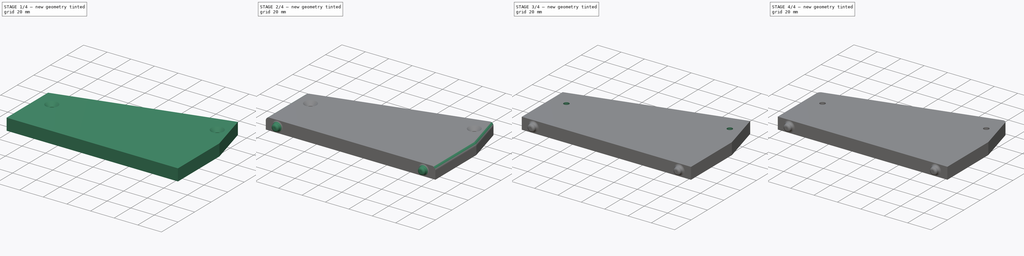
[diagram: build sequence overview — one tinted view per stage of 4, left to right]
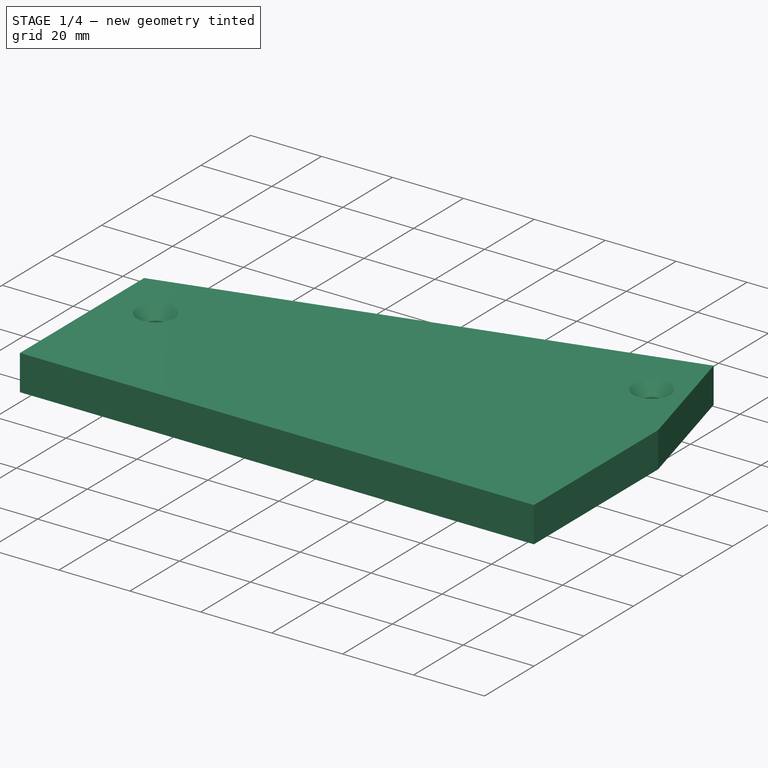
[diagram: stage 1 of 4 — iso view after this stage's code; geometry added in this stage tinted green]
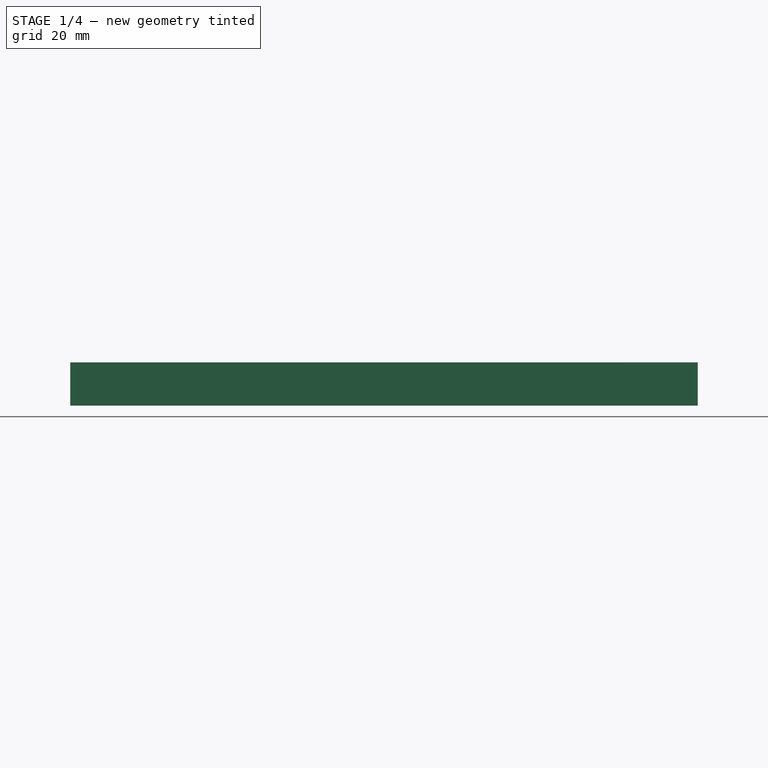
[diagram: stage 1 of 4 — front view after this stage's code; geometry added in this stage tinted green]
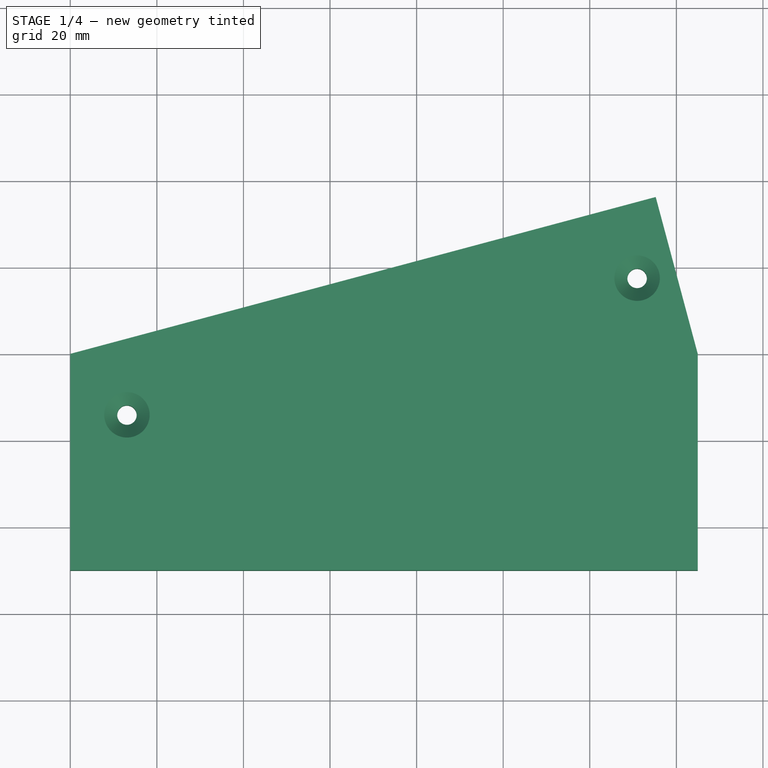
[diagram: stage 1 of 4 — top view after this stage's code; geometry added in this stage tinted green]
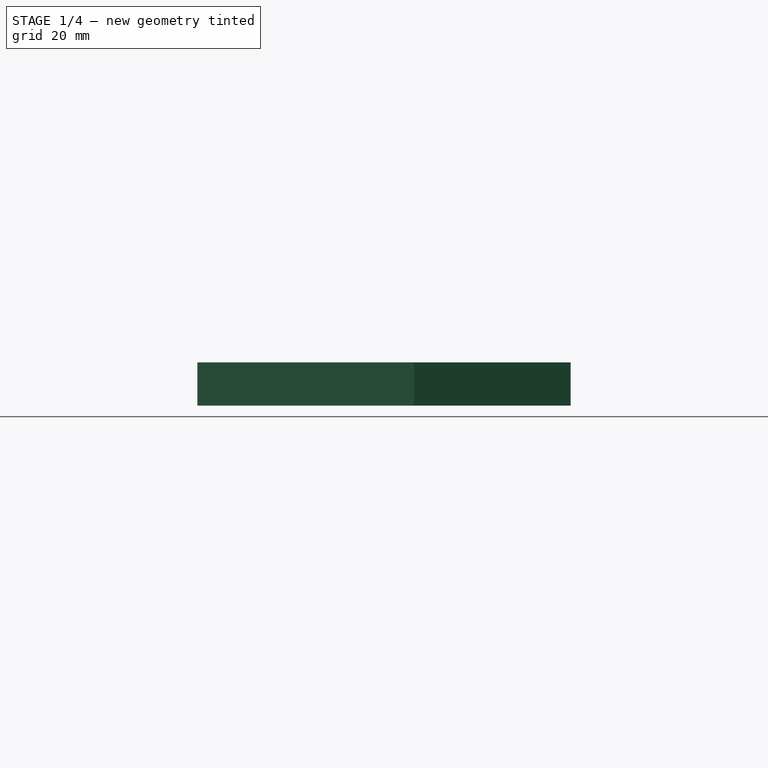
[diagram: stage 1 of 4 — right view after this stage's code; geometry added in this stage tinted green]
FCSTD DOCUMENT  (FreeCAD 1.0R39109 (Git))
Label: Sides
License: All rights reserved
LicenseURL: http://en.wikipedia.org/wiki/All_rights_reserved
objects: Sketcher::SketchObject×6, PartDesign::Pad×4, PartDesign::Fillet×4, PartDesign::Pocket×2, PartDesign::Chamfer×2, PartDesign::Body×2
note: 50 computed .brp shape members not serialized (recipe doc carries the construction recipe); baked Part::Feature solids carry a one-line shape summary decoded from their .brp

FEATURE [Sketcher::SketchObject] Sketch
  ArcFitTolerance = 1e-06
  AttachmentSupport = -> [XY_Plane]
  FullyConstrained = true
  MakeInternals = false
  MapMode = 5
  sketch-geometry (5):
    g0: LineSegment StartX=0 StartY=0 StartZ=0 EndX=135.23 EndY=36.2346 EndZ=0
    g1: LineSegment StartX=135.23 StartY=36.2346 StartZ=0 EndX=144.939 EndY=0 EndZ=0
    g2: LineSegment StartX=0 StartY=0 StartZ=0 EndX=0 EndY=-50 EndZ=0
    g3: LineSegment StartX=144.939 StartY=0 StartZ=0 EndX=144.939 EndY=-50 EndZ=0
    g4: LineSegment StartX=0 StartY=-50 StartZ=0 EndX=144.939 EndY=-50 EndZ=0
  constraints (14):
    c: Distance(g0) = 140
    c: Angle(g-1,g0) = 0.261799
    c: Coincident(g0,g-1)
    c: Angle(g-1,g1) = -1.309
    c: Coincident(g1,g0)
    c: PointOnObject(g1,g-1)
    c: Distance(g2) = 50
    c: Coincident(g2,g0)
    c: PointOnObject(g2,g-2)
    c: Distance(g3) = 50
    c: Coincident(g3,g1)
    c: Vertical(g3)
    c: Coincident(g4,g2)
    c: Coincident(g4,g3)
FEATURE [PartDesign::Pad] Pad
  Direction = (0,0,1)
  Length = 10
  Length2 = 10
  Profile = -> Sketch
  ReferenceAxis = -> Sketch [N_Axis]
  Suppressed = false
  Type = 0
FEATURE [Sketcher::SketchObject] Sketch001
  ArcFitTolerance = 1e-06
  AttachmentSupport = -> [Pad]
  FullyConstrained = true
  MakeInternals = false
  MapMode = 5
  Placement = pos=(0,0,10) rot=(0,0,1;0rad)
  sketch-geometry (6):
    g0: LineSegment [constr] StartX=0 StartY=0 StartZ=0 EndX=8.69333 EndY=2.32937 EndZ=0
    g1: LineSegment [constr] StartX=8.69333 StartY=2.32937 StartZ=0 EndX=13.0933 EndY=-14.0914 EndZ=0
    g2: Circle CenterX=13.0933 CenterY=-14.0914 CenterZ=0 NormalX=0 NormalY=0 NormalZ=1 AngleXU=0 Radius=2.25
    g3: LineSegment [constr] StartX=8.69333 StartY=2.32937 StartZ=0 EndX=126.536 EndY=33.9052 EndZ=0
    g4: LineSegment [constr] StartX=126.536 StartY=33.9052 StartZ=0 EndX=130.936 EndY=17.4845 EndZ=0
    g5: Circle CenterX=130.936 CenterY=17.4845 CenterZ=0 NormalX=0 NormalY=0 NormalZ=1 AngleXU=0 Radius=2.25
  constraints (16):
    c: Distance(g0) = 9
    c: Angle(g-1,g0) = 0.261799
    c: Coincident(g0,g-1)
    c: Distance(g1) = 17
    c: Angle(g-1,g1) = -1.309
    c: Coincident(g1,g0)
    c: Diameter(g2) = 4.5
    c: Coincident(g2,g1)
    c: Distance(g3) = 122
    c: Angle(g-1,g3) = 0.261799
    c: Coincident(g3,g0)
    c: Distance(g4) = 17
    c: Angle(g-1,g4) = -1.309
    c: Coincident(g4,g3)
    c: Diameter(g5) = 4.5
    c: Coincident(g5,g4)
FEATURE [PartDesign::Pocket] Pocket
  BaseFeature = -> Pad
  Direction = (0,0,-1)
  Length = 10
  Length2 = 5
  Profile = -> Sketch001
  ReferenceAxis = -> Sketch001 [N_Axis]
  Suppressed = false
  Type = 0
FEATURE [PartDesign::Chamfer] Chamfer
  Angle = 45
  Base = -> Pocket [Edge18,Edge17]
  BaseFeature = -> Pocket
  ChamferType = 0
  FlipDirection = false
  Size = 3
  Size2 = 1
  SupportTransform = false
  Suppressed = false
  UseAllEdges = false
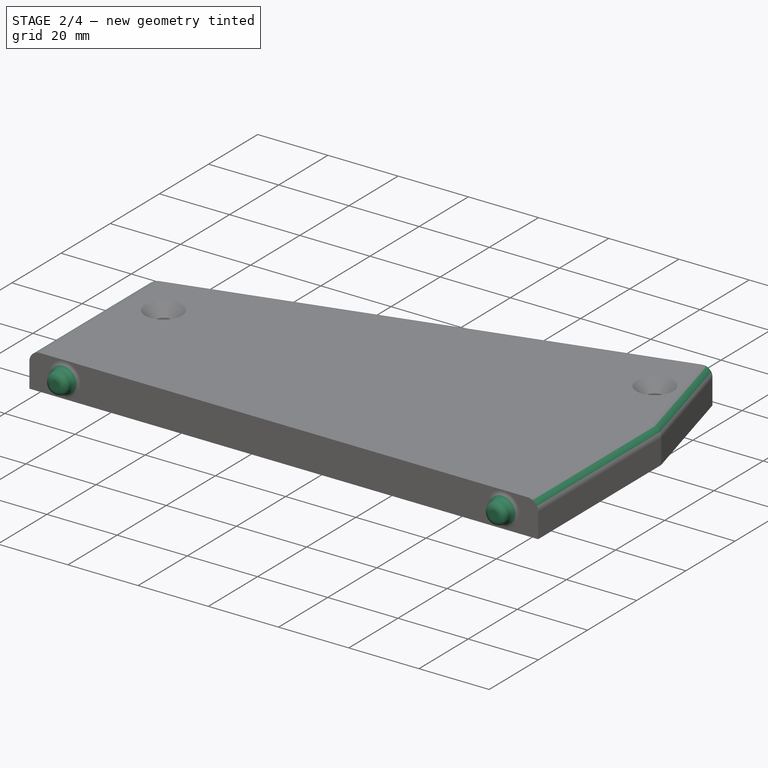
[diagram: stage 2 of 4 — iso view after this stage's code; geometry added in this stage tinted green]
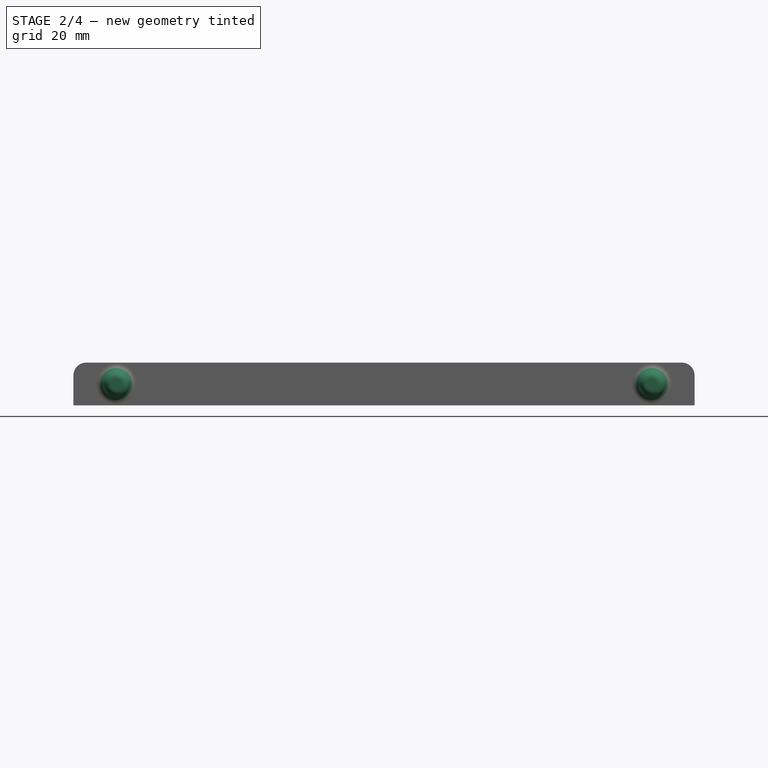
[diagram: stage 2 of 4 — front view after this stage's code; geometry added in this stage tinted green]
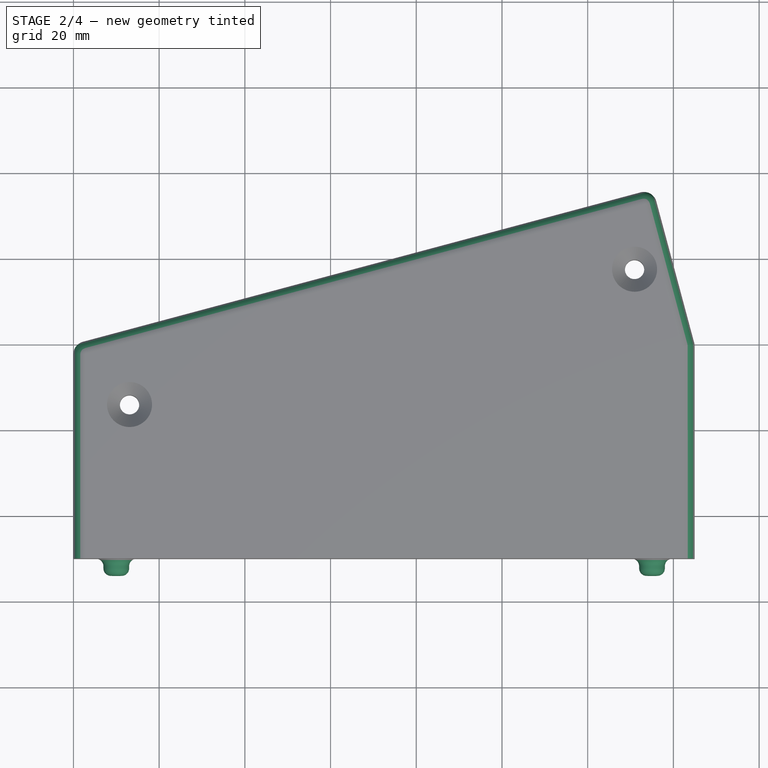
[diagram: stage 2 of 4 — top view after this stage's code; geometry added in this stage tinted green]
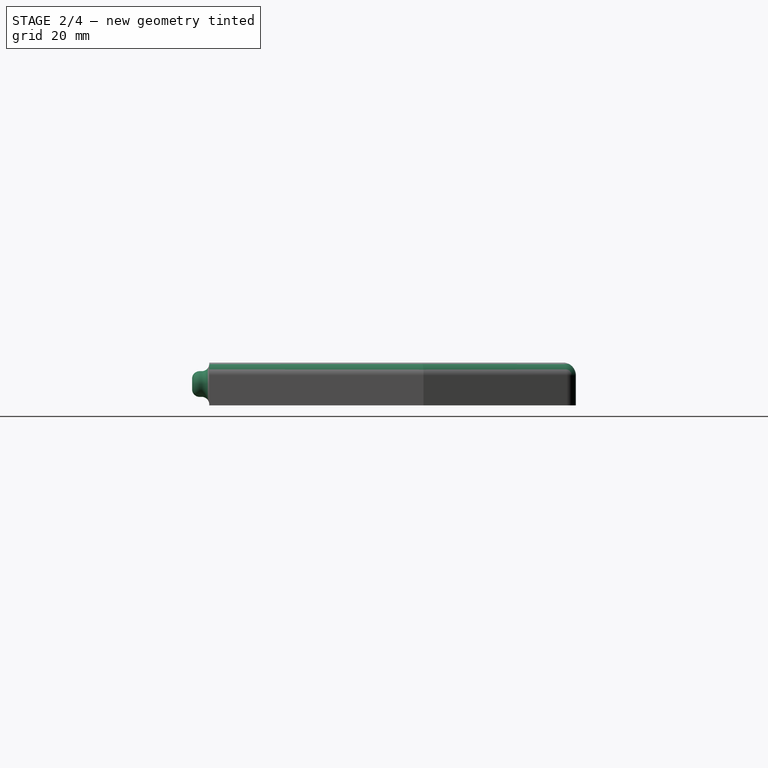
[diagram: stage 2 of 4 — right view after this stage's code; geometry added in this stage tinted green]
FEATURE [PartDesign::Fillet] Fillet
  Base = -> Chamfer [Edge6,Edge4,Edge2,Edge3,Edge11,Edge10]
  BaseFeature = -> Chamfer
  Radius = 3
  SupportTransform = false
  Suppressed = false
  UseAllEdges = false
FEATURE [PartDesign::Body] Body001  label="Right"
  AllowCompound = false
  Group = -> [Sketch002,Pad001,Sketch003,Pocket001,Chamfer001,Fillet001,Sketch004,Pad002,Fillet002]
  Origin = -> Origin001
  Placement = pos=(0,-102,0) rot=(0,0,1;0rad)
  Tip = -> Fillet002
FEATURE [Sketcher::SketchObject] Sketch005
  ArcFitTolerance = 1e-06
  AttachmentSupport = -> [Fillet]
  FullyConstrained = true
  MakeInternals = false
  MapMode = 5
  Placement = pos=(0,-50,0) rot=(1,0,0;1.5708rad)
  sketch-geometry (3):
    g0: LineSegment [constr] StartX=0 StartY=5 StartZ=0 EndX=145 EndY=5 EndZ=0
    g1: Circle CenterX=10 CenterY=5 CenterZ=0 NormalX=0 NormalY=0 NormalZ=1 AngleXU=0 Radius=3
    g2: Circle CenterX=135 CenterY=5 CenterZ=0 NormalX=0 NormalY=0 NormalZ=1 AngleXU=0 Radius=3
  constraints (10):
    c: Distance(g0) = 145
    c: Horizontal(g0)
    c: PointOnObject(g0,g-2)
    c: DistanceY(g-1,g0) = 5
    c: Diameter(g1) = 6
    c: PointOnObject(g1,g0)
    c: Diameter(g2) = 6
    c: PointOnObject(g2,g0)
    c: DistanceX(g0,g1) = 10
    c: DistanceX(g2,g0) = 10
FEATURE [PartDesign::Pad] Pad003
  BaseFeature = -> Fillet
  Direction = (0,-1,2e-16)
  Length = 4
  Length2 = 10
  Profile = -> Sketch005
  ReferenceAxis = -> Sketch005 [N_Axis]
  Suppressed = false
  Type = 0
FEATURE [PartDesign::Fillet] Fillet003
  Base = -> Pad003 [Edge41,Edge14,Edge39,Edge13]
  BaseFeature = -> Pad003
  Radius = 1.75
  SupportTransform = false
  Suppressed = false
  UseAllEdges = false
FEATURE [PartDesign::Body] Body  label="Left"
  AllowCompound = false
  Group = -> [Sketch,Pad,Sketch001,Pocket,Chamfer,Fillet,Sketch005,Pad003,Fillet003]
  Origin = -> Origin
  Tip = -> Fillet003
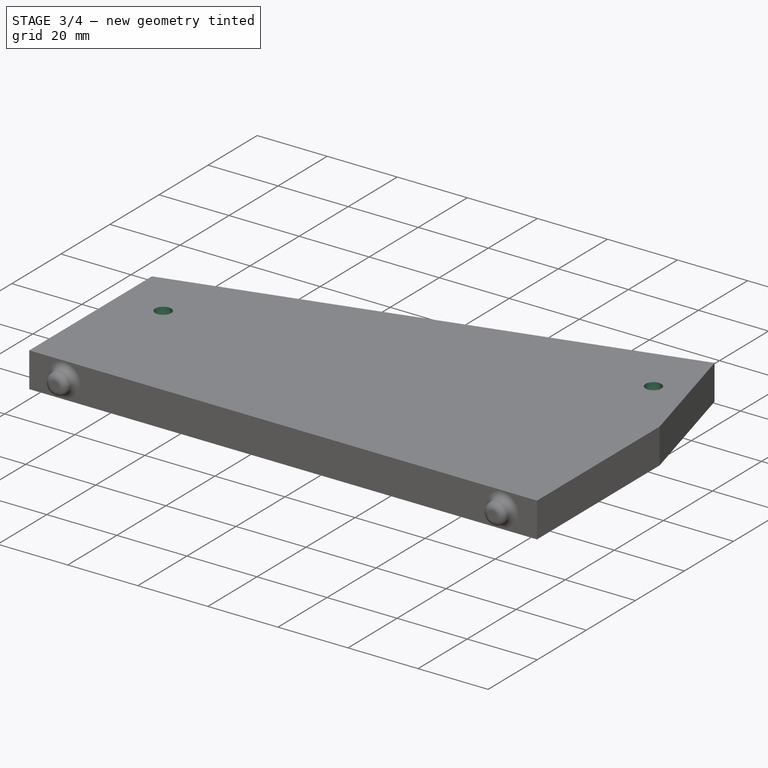
[diagram: stage 3 of 4 — iso view after this stage's code; geometry added in this stage tinted green]
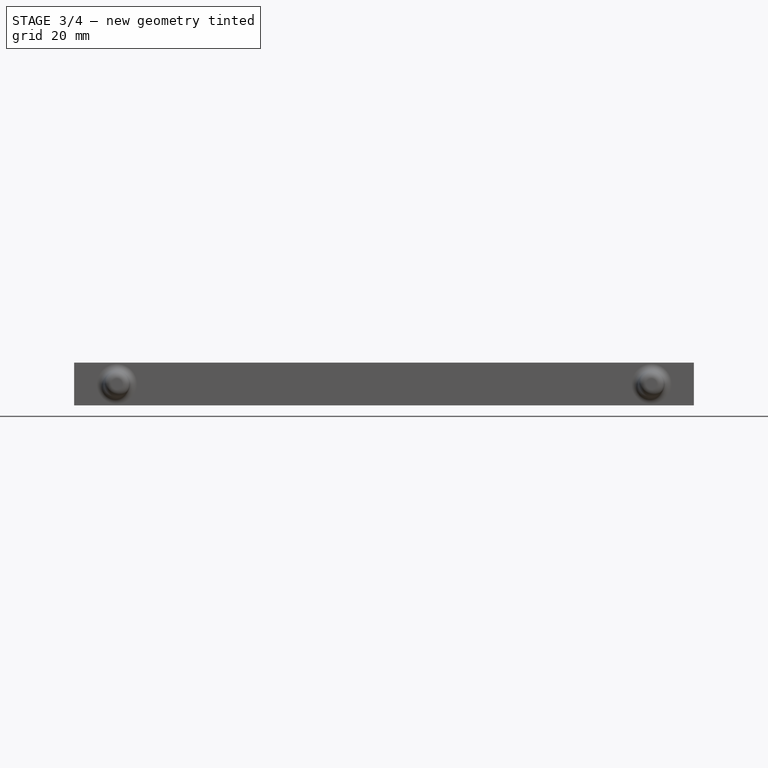
[diagram: stage 3 of 4 — front view after this stage's code; geometry added in this stage tinted green]
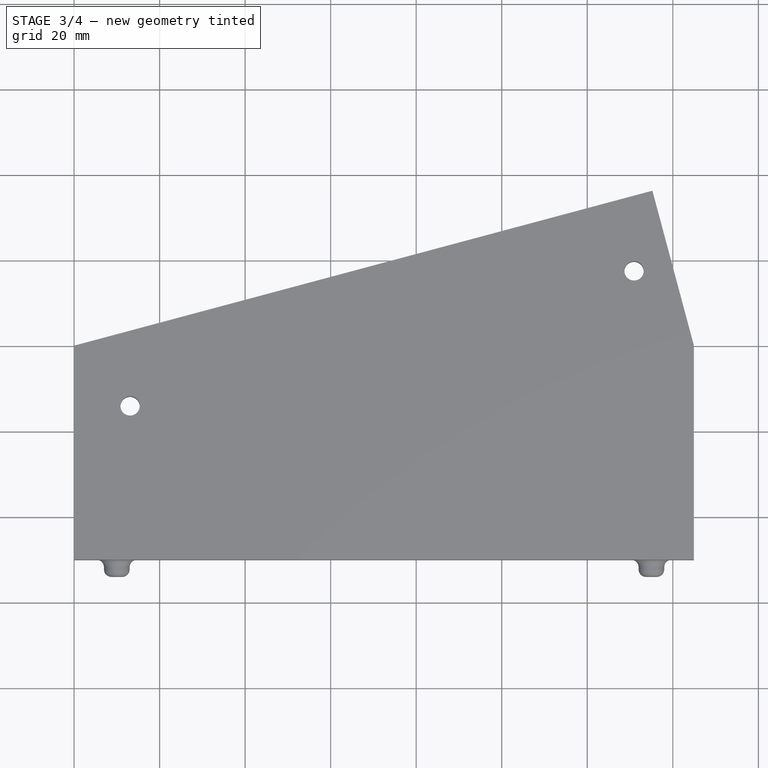
[diagram: stage 3 of 4 — top view after this stage's code; geometry added in this stage tinted green]
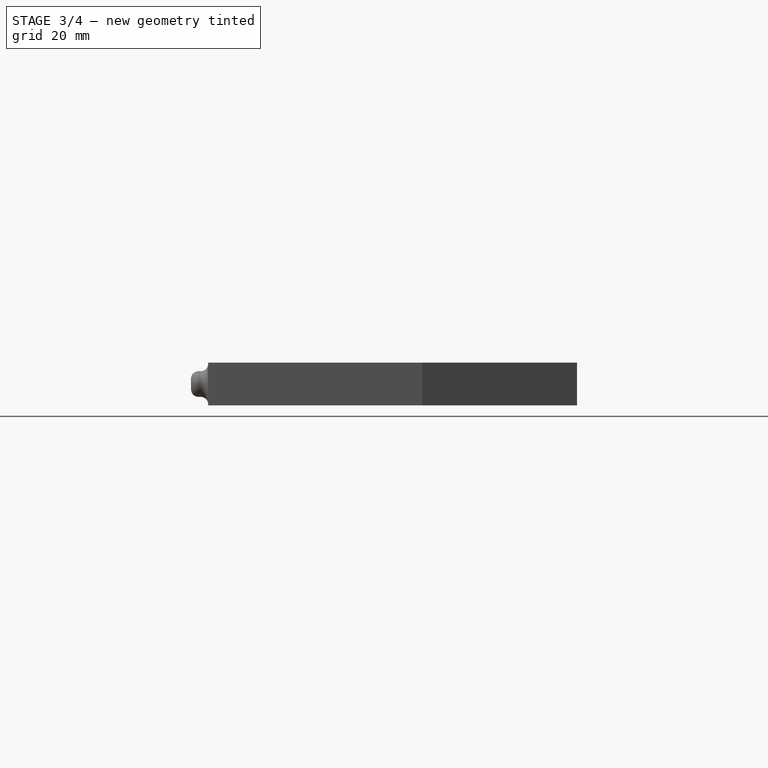
[diagram: stage 3 of 4 — right view after this stage's code; geometry added in this stage tinted green]
FEATURE [Sketcher::SketchObject] Sketch002
  ArcFitTolerance = 1e-06
  AttachmentSupport = -> [XY_Plane001]
  FullyConstrained = true
  MakeInternals = false
  MapMode = 5
  sketch-geometry (5):
    g0: LineSegment StartX=0 StartY=0 StartZ=0 EndX=135.23 EndY=36.2346 EndZ=0
    g1: LineSegment StartX=135.23 StartY=36.2346 StartZ=0 EndX=144.939 EndY=0 EndZ=0
    g2: LineSegment StartX=0 StartY=0 StartZ=0 EndX=0 EndY=-50 EndZ=0
    g3: LineSegment StartX=144.939 StartY=0 StartZ=0 EndX=144.939 EndY=-50 EndZ=0
    g4: LineSegment StartX=0 StartY=-50 StartZ=0 EndX=144.939 EndY=-50 EndZ=0
  constraints (14):
    c: Distance(g0) = 140
    c: Angle(g-1,g0) = 0.261799
    c: Coincident(g0,g-1)
    c: Angle(g-1,g1) = -1.309
    c: Coincident(g1,g0)
    c: PointOnObject(g1,g-1)
    c: Distance(g2) = 50
    c: Coincident(g2,g0)
    c: PointOnObject(g2,g-2)
    c: Distance(g3) = 50
    c: Coincident(g3,g1)
    c: Vertical(g3)
    c: Coincident(g4,g2)
    c: Coincident(g4,g3)
FEATURE [PartDesign::Pad] Pad001
  Direction = (0,0,1)
  Length = 10
  Length2 = 10
  Profile = -> Sketch002
  ReferenceAxis = -> Sketch002 [N_Axis]
  Suppressed = false
  Type = 0
FEATURE [Sketcher::SketchObject] Sketch003
  ArcFitTolerance = 1e-06
  AttachmentSupport = -> [Pad001]
  FullyConstrained = true
  MakeInternals = false
  MapMode = 5
  Placement = pos=(0,0,10) rot=(0,0,1;0rad)
  sketch-geometry (6):
    g0: LineSegment [constr] StartX=0 StartY=0 StartZ=0 EndX=8.69333 EndY=2.32937 EndZ=0
    g1: LineSegment [constr] StartX=8.69333 StartY=2.32937 StartZ=0 EndX=13.0933 EndY=-14.0914 EndZ=0
    g2: Circle CenterX=13.0933 CenterY=-14.0914 CenterZ=0 NormalX=0 NormalY=0 NormalZ=1 AngleXU=0 Radius=2.25
    g3: LineSegment [constr] StartX=8.69333 StartY=2.32937 StartZ=0 EndX=126.536 EndY=33.9052 EndZ=0
    g4: LineSegment [constr] StartX=126.536 StartY=33.9052 StartZ=0 EndX=130.936 EndY=17.4845 EndZ=0
    g5: Circle CenterX=130.936 CenterY=17.4845 CenterZ=0 NormalX=0 NormalY=0 NormalZ=1 AngleXU=0 Radius=2.25
  constraints (16):
    c: Distance(g0) = 9
    c: Angle(g-1,g0) = 0.261799
    c: Coincident(g0,g-1)
    c: Distance(g1) = 17
    c: Angle(g-1,g1) = -1.309
    c: Coincident(g1,g0)
    c: Diameter(g2) = 4.5
    c: Coincident(g2,g1)
    c: Distance(g3) = 122
    c: Angle(g-1,g3) = 0.261799
    c: Coincident(g3,g0)
    c: Distance(g4) = 17
    c: Angle(g-1,g4) = -1.309
    c: Coincident(g4,g3)
    c: Diameter(g5) = 4.5
    c: Coincident(g5,g4)
FEATURE [PartDesign::Pocket] Pocket001
  BaseFeature = -> Pad001
  Direction = (0,0,-1)
  Length = 10
  Length2 = 5
  Profile = -> Sketch003
  ReferenceAxis = -> Sketch003 [N_Axis]
  Suppressed = false
  Type = 0
FEATURE [PartDesign::Chamfer] Chamfer001
  Angle = 45
  Base = -> Pocket001 [Edge14,Edge13]
  BaseFeature = -> Pocket001
  ChamferType = 2
  FlipDirection = false
  Size = 3
  Size2 = 1
  SupportTransform = false
  Suppressed = false
  UseAllEdges = false
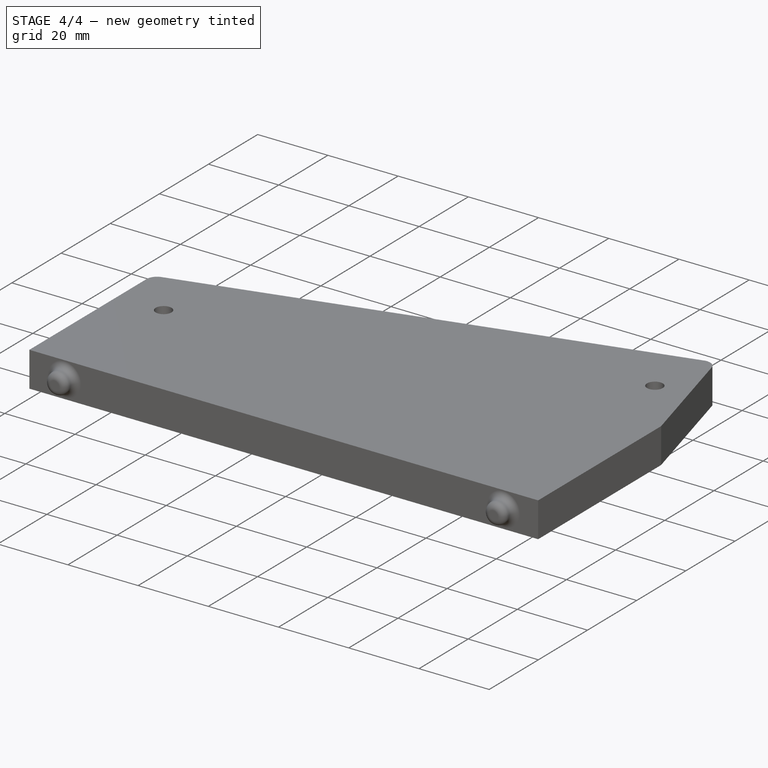
[diagram: stage 4 of 4 — iso view after this stage's code; geometry added in this stage tinted green]
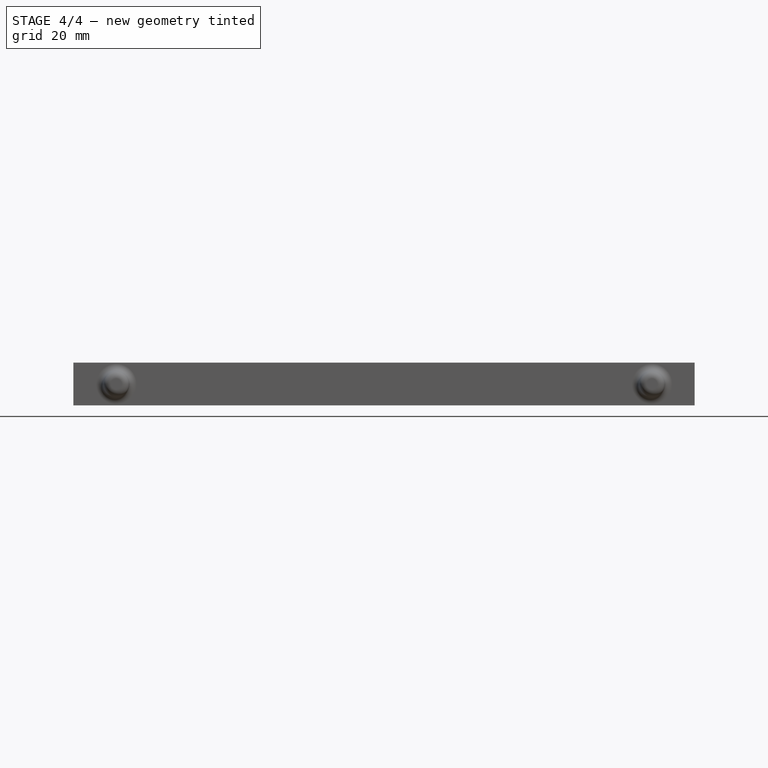
[diagram: stage 4 of 4 — front view after this stage's code; geometry added in this stage tinted green]
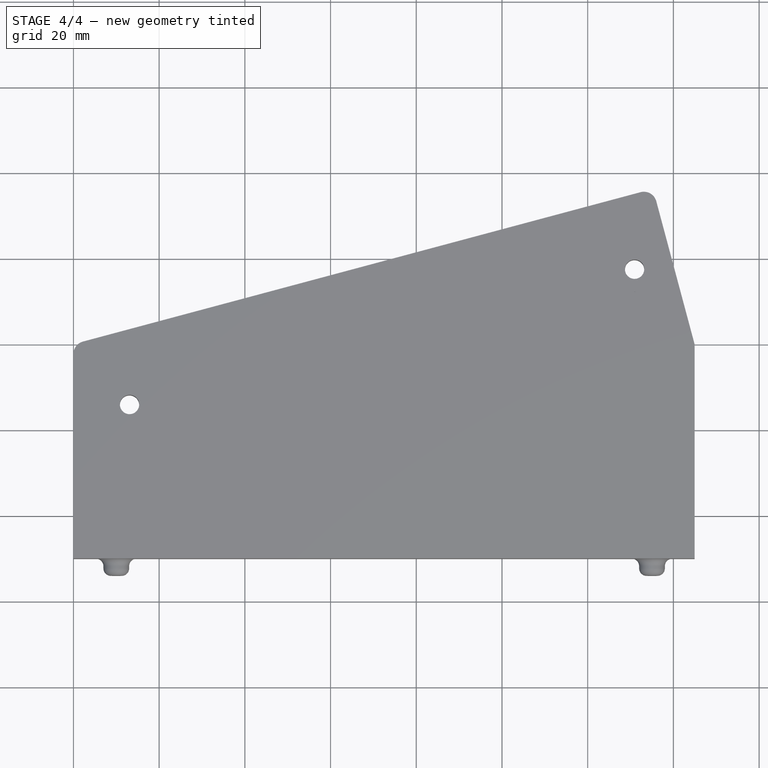
[diagram: stage 4 of 4 — top view after this stage's code; geometry added in this stage tinted green]
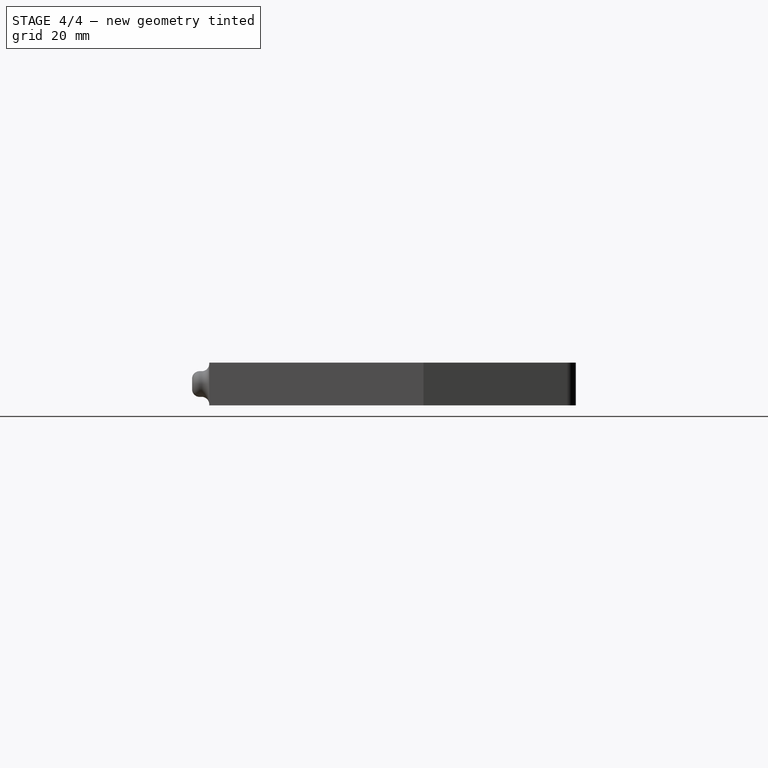
[diagram: stage 4 of 4 — right view after this stage's code; geometry added in this stage tinted green]
FEATURE [PartDesign::Fillet] Fillet001
  Base = -> Chamfer001 [Edge4,Edge6,Edge3,Edge2,Edge11,Edge10]
  BaseFeature = -> Chamfer001
  Radius = 3
  SupportTransform = false
  Suppressed = false
  UseAllEdges = false
FEATURE [Sketcher::SketchObject] Sketch004
  ArcFitTolerance = 1e-06
  AttachmentSupport = -> [Fillet001]
  FullyConstrained = true
  MakeInternals = false
  MapMode = 5
  Placement = pos=(0,-50,0) rot=(1,0,0;1.5708rad)
  sketch-geometry (3):
    g0: LineSegment [constr] StartX=0 StartY=5 StartZ=0 EndX=145 EndY=5 EndZ=0
    g1: Circle CenterX=10 CenterY=5 CenterZ=0 NormalX=0 NormalY=0 NormalZ=1 AngleXU=0 Radius=3
    g2: Circle CenterX=135 CenterY=5 CenterZ=0 NormalX=0 NormalY=0 NormalZ=1 AngleXU=0 Radius=3
  constraints (10):
    c: PointOnObject(g0,g-2)
    c: Horizontal(g0)
    c: DistanceX(g0,g0) = 145
    c: DistanceY(g-1,g0) = 5
    c: Diameter(g1) = 6
    c: PointOnObject(g1,g0)
    c: Diameter(g2) = 6
    c: PointOnObject(g2,g0)
    c: DistanceX(g0,g1) = 10
    c: DistanceX(g2,g0) = 10
FEATURE [PartDesign::Pad] Pad002
  BaseFeature = -> Fillet001
  Direction = (0,-1,2e-16)
  Length = 4
  Length2 = 10
  Profile = -> Sketch004
  ReferenceAxis = -> Sketch004 [N_Axis]
  Suppressed = false
  Type = 0
FEATURE [PartDesign::Fillet] Fillet002
  Base = -> Pad002 [Edge39,Edge41,Edge14,Edge13]
  BaseFeature = -> Pad002
  Radius = 1.75
  SupportTransform = false
  Suppressed = false
  UseAllEdges = false
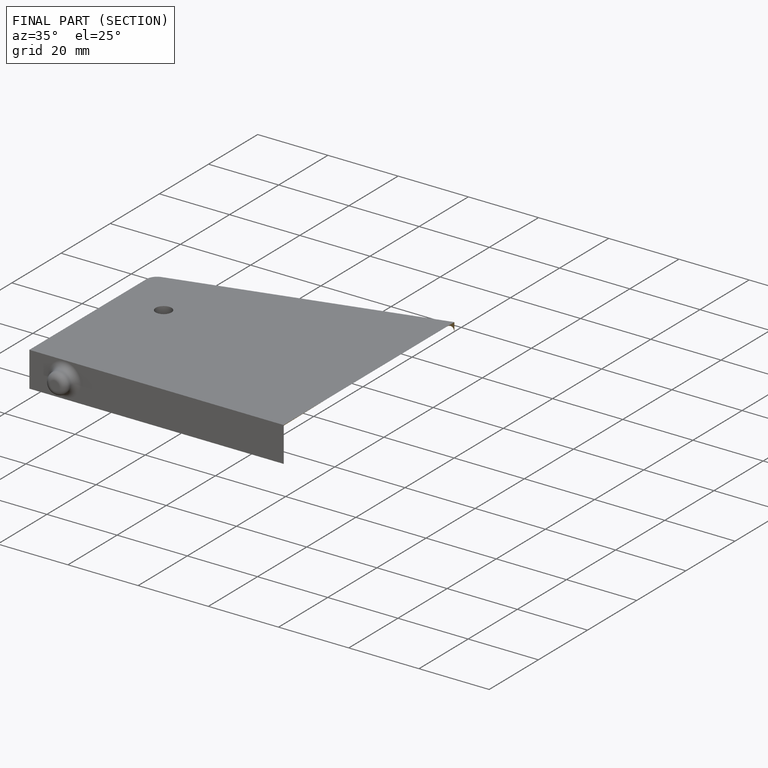
[diagram: finished part — half-section view (interior)]
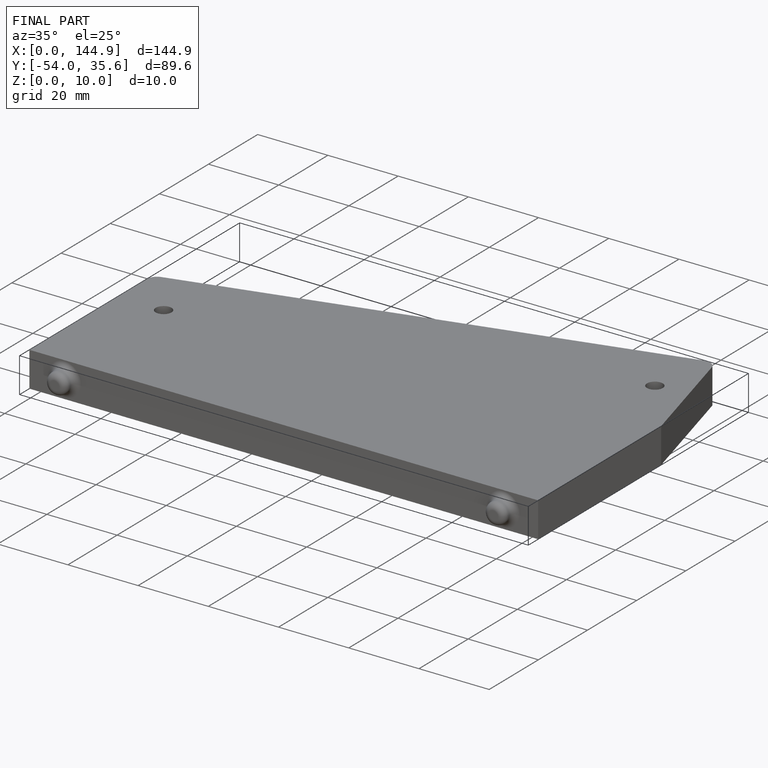
[diagram: finished part — iso view with bounding-box wireframe]
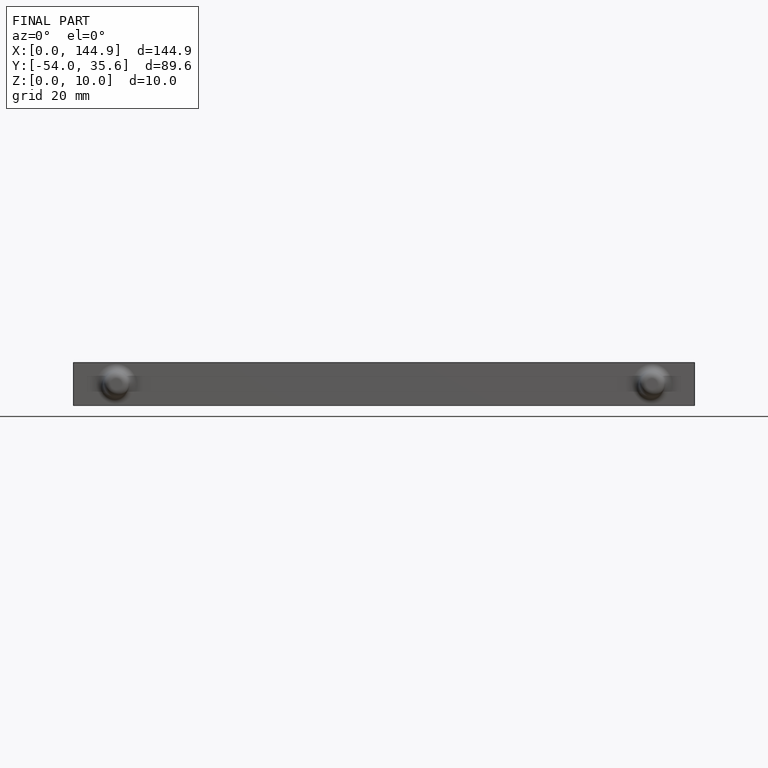
[diagram: finished part — front view with bounding-box wireframe]
